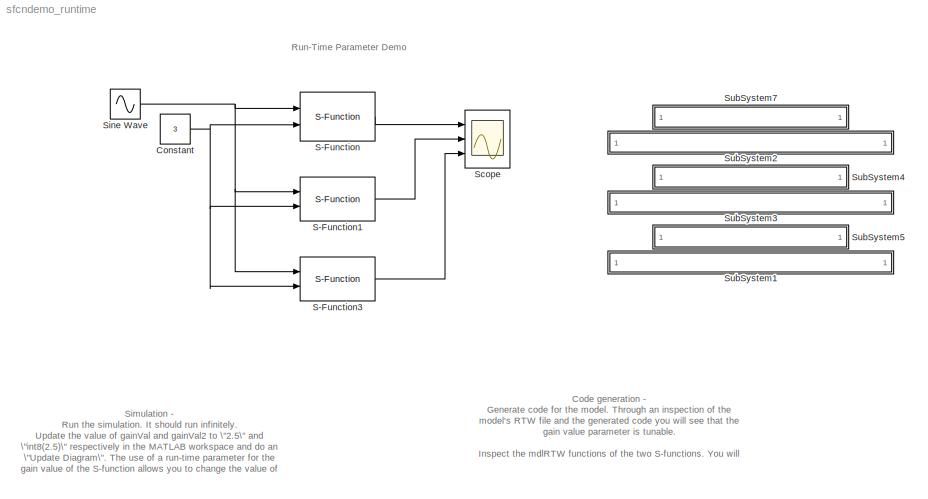
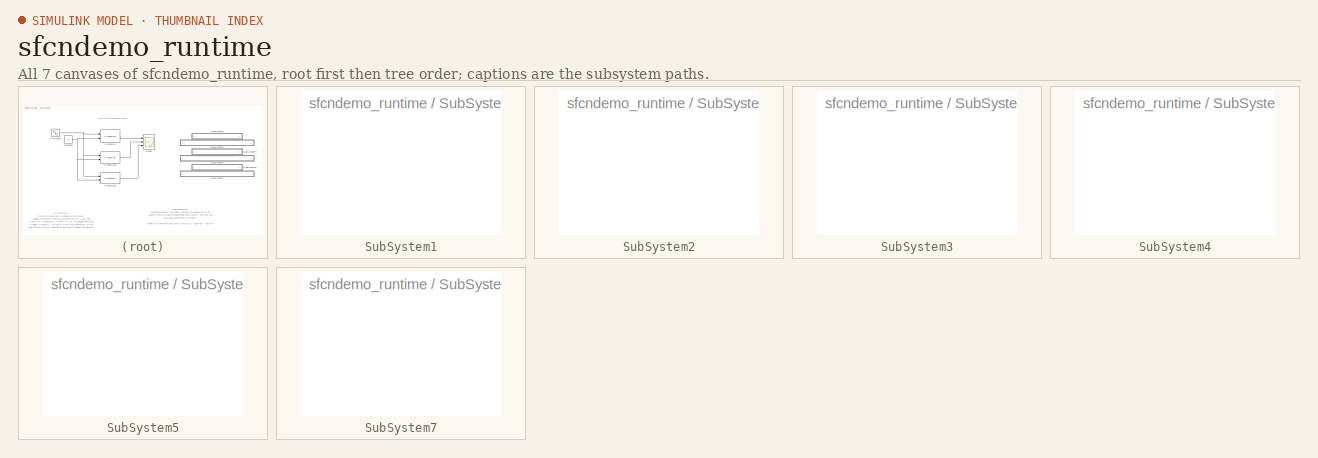
[diagram: thumbnail index - all 7 canvases of the model, root first then tree order]
MODEL sfcndemo_runtime
KIND model
CONFIG PreLoadFcn = gainVal=5;gainVal2=int8(5);
BLOCK [Constant] Constant
  Value = 3
BLOCK [S-Function] S-Function
  FunctionName = sfun_runtime1
  Parameters = '++',gainVal,'SumTimesGain'
  Ports = [2, 1]
BLOCK [S-Function] S-Function1
  FunctionName = sfun_runtime2
  Parameters = '++',gainVal,'SumTimesGain'
  Ports = [2, 1]
BLOCK [S-Function] S-Function3
  FunctionName = sfun_runtime3
  Parameters = '++',gainVal2,'SumTimesGain'
  Ports = [2, 1]
BLOCK [Scope] Scope
  DataFormat = StructureWithTime
  NumInputPorts = 3
  Ports = [3]
  TimeRange = 4
  YMax = 20~20~20
  YMin = 5~5~5
BLOCK [Sin] Sine Wave
  Ports = [0, 1]
  SampleTime = 0.1
  SineType = Time based
BLOCK [SubSystem] SubSystem1
  AttributesFormatString = <path>
  MaskDisplay = disp(x)
  MaskEnableString = on
  MaskIconFrame = on
  MaskIconOpaque = on
  MaskIconRotate = none
  MaskIconUnits = autoscale
  MaskInitialization = x=sfundemo_maskdisp;
  MaskPromptString = file name
  MaskStyleString = edit
  MaskToolTipString = on
  MaskTunableValueString = off
  MaskValueString = sfun_runtime3.tlc
  MaskVariables = filename=&1;
  MaskVisibilityString = on
  MinAlgLoopOccurrences = off
  OpenFcn = sfundemo_openfcn
  Ports = []
  PropExecContextAcrossSSBoundary = on
  RTWSystemCode = Auto
  TreatAsAtomicUnit = off
BLOCK [SubSystem] SubSystem2
  AttributesFormatString = <path>
  MaskDisplay = disp(x)
  MaskEnableString = on
  MaskIconFrame = on
  MaskIconOpaque = on
  MaskIconRotate = none
  MaskIconUnits = autoscale
  MaskInitialization = x=sfundemo_maskdisp;
  MaskPromptString = file name
  MaskStyleString = edit
  MaskToolTipString = on
  MaskTunableValueString = off
  MaskValueString = sfun_runtime1.tlc
  MaskVariables = filename=&1;
  MaskVisibilityString = on
  MinAlgLoopOccurrences = off
  OpenFcn = sfundemo_openfcn
  Ports = []
  PropExecContextAcrossSSBoundary = on
  RTWSystemCode = Auto
  TreatAsAtomicUnit = off
BLOCK [SubSystem] SubSystem3
  AttributesFormatString = <path>
  MaskDisplay = disp(x)
  MaskEnableString = on
  MaskIconFrame = on
  MaskIconOpaque = on
  MaskIconRotate = none
  MaskIconUnits = autoscale
  MaskInitialization = x=sfundemo_maskdisp;
  MaskPromptString = file name
  MaskStyleString = edit
  MaskToolTipString = on
  MaskTunableValueString = off
  MaskValueString = sfun_runtime2.tlc
  MaskVariables = filename=&1;
  MaskVisibilityString = on
  MinAlgLoopOccurrences = off
  OpenFcn = sfundemo_openfcn
  Ports = []
  PropExecContextAcrossSSBoundary = on
  RTWSystemCode = Auto
  TreatAsAtomicUnit = off
BLOCK [SubSystem] SubSystem4
  AttributesFormatString = <path>
  MaskDisplay = disp(x)
  MaskEnableString = on
  MaskIconFrame = on
  MaskIconOpaque = on
  MaskIconRotate = none
  MaskIconUnits = autoscale
  MaskInitialization = x=sfundemo_maskdisp;
  MaskPromptString = file name
  MaskStyleString = edit
  MaskToolTipString = on
  MaskTunableValueString = off
  MaskValueString = sfun_runtime2.c
  MaskVariables = filename=&1;
  MaskVisibilityString = on
  MinAlgLoopOccurrences = off
  OpenFcn = sfundemo_openfcn
  Ports = []
  PropExecContextAcrossSSBoundary = on
  RTWSystemCode = Auto
  TreatAsAtomicUnit = off
BLOCK [SubSystem] SubSystem5
  AttributesFormatString = <path>
  MaskDisplay = disp(x)
  MaskEnableString = on
  MaskIconFrame = on
  MaskIconOpaque = on
  MaskIconRotate = none
  MaskIconUnits = autoscale
  MaskInitialization = x=sfundemo_maskdisp;
  MaskPromptString = file name
  MaskStyleString = edit
  MaskToolTipString = on
  MaskTunableValueString = off
  MaskValueString = sfun_runtime3.c
  MaskVariables = filename=&1;
  MaskVisibilityString = on
  MinAlgLoopOccurrences = off
  OpenFcn = sfundemo_openfcn
  Ports = []
  PropExecContextAcrossSSBoundary = on
  RTWSystemCode = Auto
  TreatAsAtomicUnit = off
BLOCK [SubSystem] SubSystem7
  AttributesFormatString = <path>
  MaskDisplay = disp(x)
  MaskEnableString = on
  MaskIconFrame = on
  MaskIconOpaque = on
  MaskIconRotate = none
  MaskIconUnits = autoscale
  MaskInitialization = x=sfundemo_maskdisp;
  MaskPromptString = file name
  MaskStyleString = edit
  MaskToolTipString = on
  MaskTunableValueString = off
  MaskValueString = sfun_runtime1.c
  MaskVariables = filename=&1;
  MaskVisibilityString = on
  MinAlgLoopOccurrences = off
  OpenFcn = sfundemo_openfcn
  Ports = []
  PropExecContextAcrossSSBoundary = on
  RTWSystemCode = Auto
  TreatAsAtomicUnit = off
ANNOTATION (root): Code generation - \nGenerate code for the model. Through an inspection of the\nmodel's RTW file and the generated code you will see that the \ngain value parameter is tunable.\n\nInspect the mdlRTW functions of the two S-functions. You will\nnotice that there are no statements which explicitly write out the\nrun-time parameters. It happens automatically.
ANNOTATION (root): Run-Time Parameter Demo
ANNOTATION (root): Simulation - \nRun the simulation. It should run infinitely.\nUpdate the value of gainVal and gainVal2 to \"2.5\" and\n\"int8(2.5)\" respectively in the MATLAB workspace and do an \n\"Update Diagram\". The use of a run-time parameter for the \ngain value of the S-function allows you to change the value of \ngain on the fly during simulation.\n\nInspect sfun_runtime1.c, sfun_runtime2.c, and sfun_ru...<+95ch>
NET Constant:1 -> S-Function1:2, S-Function3:2, S-Function:2
LINE S-Function1:1 -> Scope:2
LINE S-Function3:1 -> Scope:3
LINE S-Function:1 -> Scope:1
NET Sine Wave:1 -> S-Function1:1, S-Function3:1, S-Function:1
note: NET lines group one-source signal fan-out (src -> all destinations, sorted); 1:1 wires keep LINE
note: 6 file-system paths scrubbed to <path> (not preserved elsewhere — flat text is the only slx artifact)
